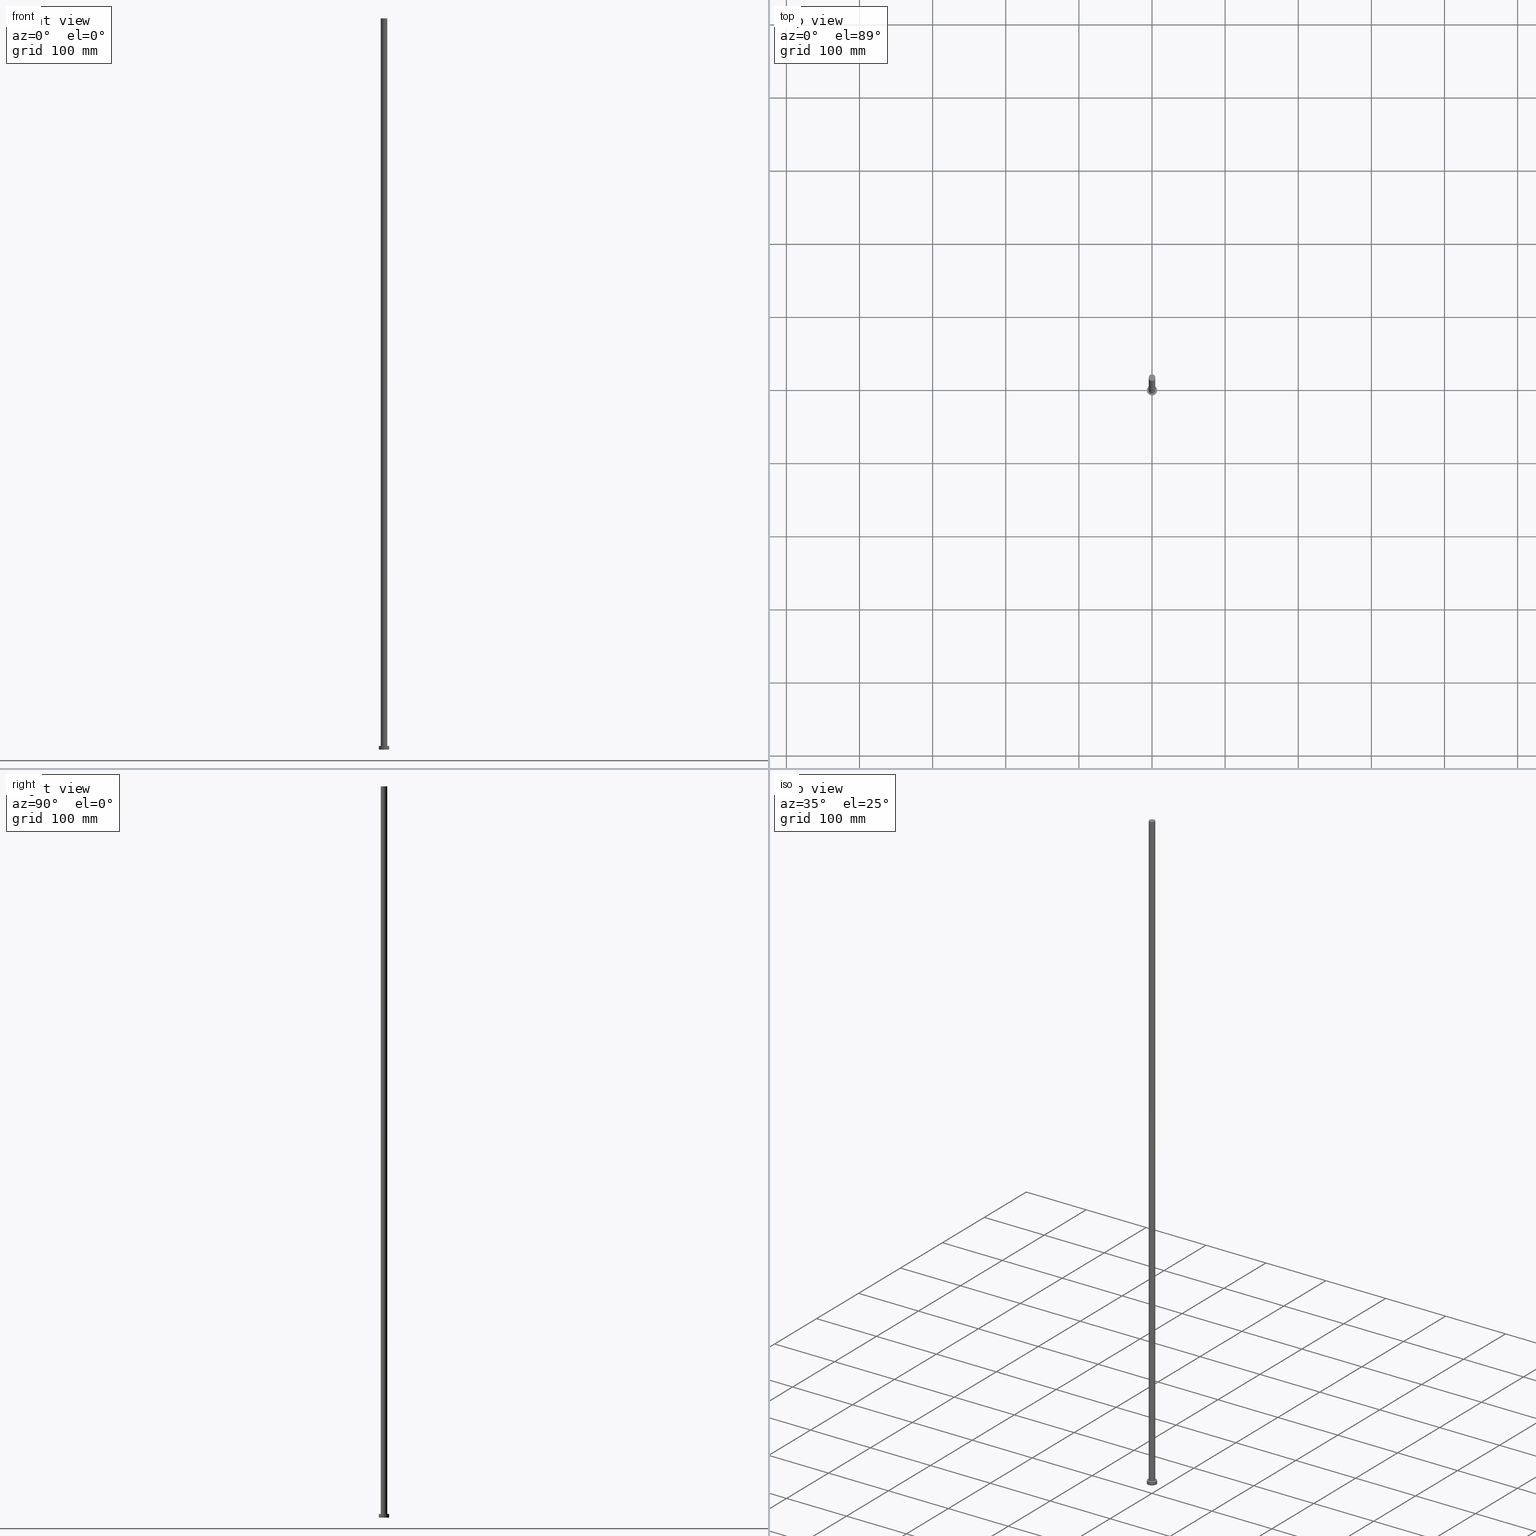
[diagram: canonical four-view strip — front | top / right | iso, engineering-drawing reading convention]
A machine part, canonical four-view strip (front | top / right | iso — engineering-drawing reading convention). The complete STEP part file that produces these views, byte-faithful:
ISO-10303-21;
HEADER;
FILE_DESCRIPTION (( 'STEP AP203' ),
    '1' );
FILE_NAME ('b1a9.STEP',
    '2023-02-12T11:28:35',
    ( '' ),
    ( '' ),
    'SwSTEP 2.0',
    'SolidWorks 2019',
    '' );
FILE_SCHEMA (( 'CONFIG_CONTROL_DESIGN' ));
ENDSEC;

DATA;
#1 = CARTESIAN_POINT ( 'NONE',  ( 4.500000000000000888, 5.510910596163088569E-16, 5.000000000000000000 ) ) ;
#2 = APPROVAL_DATE_TIME ( #186, #63 ) ;
#3 = CARTESIAN_POINT ( 'NONE',  ( -7.000000000000000000, 0.000000000000000000, 5.000000000000000000 ) ) ;
#4 = CC_DESIGN_APPROVAL ( #63, ( #235 ) ) ;
#5 = LINE ( 'NONE', #91, #96 ) ;
#6 = PERSON_AND_ORGANIZATION_ROLE ( 'creator' ) ;
#7 = CC_DESIGN_PERSON_AND_ORGANIZATION_ASSIGNMENT ( #92, #149, ( #235 ) ) ;
#8 = DIRECTION ( 'NONE',  ( 1.000000000000000000, 0.000000000000000000, 0.000000000000000000 ) ) ;
#9 = DATE_AND_TIME ( #171, #195 ) ;
#10 = CARTESIAN_POINT ( 'NONE',  ( 0.000000000000000000, 0.000000000000000000, 5.000000000000000000 ) ) ;
#11 = PLANE ( 'NONE',  #59 ) ;
#12 = EDGE_LOOP ( 'NONE', ( #43, #82, #164, #183 ) ) ;
#13 = ORIENTED_EDGE ( 'NONE', *, *, #165, .F. ) ;
#14 = ADVANCED_FACE ( 'NONE', ( #144, #210 ), #30, .T. ) ;
#15 = ADVANCED_FACE ( 'NONE', ( #80 ), #11, .F. ) ;
#16 = DIRECTION ( 'NONE',  ( 0.000000000000000000, 0.000000000000000000, 1.000000000000000000 ) ) ;
#17 = ADVANCED_FACE ( 'NONE', ( #254 ), #250, .T. ) ;
#18 = PERSON_AND_ORGANIZATION ( #178, #142 ) ;
#19 = DIRECTION ( 'NONE',  ( -0.000000000000000000, -0.000000000000000000, -1.000000000000000000 ) ) ;
#20 = CARTESIAN_POINT ( 'NONE',  ( 4.500000000000000888, 5.510910596163088569E-16, 1000.000000000000000 ) ) ;
#21 = CC_DESIGN_APPROVAL ( #162, ( #194 ) ) ;
#22 = PERSON_AND_ORGANIZATION ( #178, #142 ) ;
#23 = EDGE_LOOP ( 'NONE', ( #123, #127 ) ) ;
#24 = VERTEX_POINT ( 'NONE', #78 ) ;
#25 = EDGE_CURVE ( 'NONE', #67, #156, #137, .T. ) ;
#26 = EDGE_LOOP ( 'NONE', ( #163, #28 ) ) ;
#27 = CARTESIAN_POINT ( 'NONE',  ( 0.000000000000000000, 0.000000000000000000, 5.000000000000000000 ) ) ;
#28 = ORIENTED_EDGE ( 'NONE', *, *, #115, .T. ) ;
#29 = DESIGN_CONTEXT ( 'detailed design', #167, 'design' ) ;
#30 = PLANE ( 'NONE',  #200 ) ;
#31 = DIRECTION ( 'NONE',  ( 1.000000000000000000, 0.000000000000000000, 0.000000000000000000 ) ) ;
#32 = AXIS2_PLACEMENT_3D ( 'NONE', #221, #38, #155 ) ;
#33 = COORDINATED_UNIVERSAL_TIME_OFFSET ( 1, 0, .AHEAD. ) ;
#34 = CYLINDRICAL_SURFACE ( 'NONE', #79, 4.500000000000000888 ) ;
#35 = CARTESIAN_POINT ( 'NONE',  ( 0.000000000000000000, 0.000000000000000000, 1000.000000000000000 ) ) ;
#36 = LOCAL_TIME ( 12, 28, 35.00000000000000000, #33 ) ;
#37 = DATE_TIME_ROLE ( 'creation_date' ) ;
#38 = DIRECTION ( 'NONE',  ( 0.000000000000000000, 0.000000000000000000, 1.000000000000000000 ) ) ;
#39 = FACE_OUTER_BOUND ( 'NONE', #108, .T. ) ;
#40 = CYLINDRICAL_SURFACE ( 'NONE', #54, 7.000000000000000000 ) ;
#41 = AXIS2_PLACEMENT_3D ( 'NONE', #132, #16, #147 ) ;
#42 = CC_DESIGN_PERSON_AND_ORGANIZATION_ASSIGNMENT ( #236, #187, ( #49 ) ) ;
#43 = ORIENTED_EDGE ( 'NONE', *, *, #219, .F. ) ;
#44 = ORIENTED_EDGE ( 'NONE', *, *, #243, .F. ) ;
#45 = ORIENTED_EDGE ( 'NONE', *, *, #211, .F. ) ;
#46 = DIRECTION ( 'NONE',  ( -1.000000000000000000, 0.000000000000000000, 0.000000000000000000 ) ) ;
#47 = PERSON_AND_ORGANIZATION ( #178, #142 ) ;
#48 = CC_DESIGN_DATE_AND_TIME_ASSIGNMENT ( #68, #69, ( #235 ) ) ;
#49 = PRODUCT_DEFINITION_FORMATION_WITH_SPECIFIED_SOURCE ( 'LIBOVOLN�', '', #174, .NOT_KNOWN. ) ;
#50 = DIRECTION ( 'NONE',  ( 1.000000000000000000, 0.000000000000000000, 0.000000000000000000 ) ) ;
#51 = APPROVAL_STATUS ( 'not_yet_approved' ) ;
#52 = APPROVAL_DATE_TIME ( #102, #162 ) ;
#53 =( NAMED_UNIT ( * ) PLANE_ANGLE_UNIT ( ) SI_UNIT ( $, .RADIAN. ) );
#54 = AXIS2_PLACEMENT_3D ( 'NONE', #118, #218, #99 ) ;
#55 = AXIS2_PLACEMENT_3D ( 'NONE', #72, #255, #94 ) ;
#56 = CALENDAR_DATE ( 2023, 12, 2 ) ;
#57 = CARTESIAN_POINT ( 'NONE',  ( 7.000000000000000000, 8.572527594031473190E-16, 5.000000000000000000 ) ) ;
#58 = CLOSED_SHELL ( 'NONE', ( #252, #215, #17, #14, #15, #157, #134 ) ) ;
#59 = AXIS2_PLACEMENT_3D ( 'NONE', #86, #121, #159 ) ;
#60 = ORIENTED_EDGE ( 'NONE', *, *, #115, .F. ) ;
#61 = VERTEX_POINT ( 'NONE', #247 ) ;
#62 = CARTESIAN_POINT ( 'NONE',  ( 0.000000000000000000, 0.000000000000000000, 5.000000000000000000 ) ) ;
#63 = APPROVAL ( #88, 'NEUR�EN�' ) ;
#64 = ORIENTED_EDGE ( 'NONE', *, *, #243, .T. ) ;
#65 = APPROVAL_PERSON_ORGANIZATION ( #196, #188, #240 ) ;
#66 = DIRECTION ( 'NONE',  ( 1.000000000000000000, 0.000000000000000000, 0.000000000000000000 ) ) ;
#67 = VERTEX_POINT ( 'NONE', #205 ) ;
#68 = DATE_AND_TIME ( #212, #81 ) ;
#69 = DATE_TIME_ROLE ( 'classification_date' ) ;
#70 = CARTESIAN_POINT ( 'NONE',  ( 0.000000000000000000, 0.000000000000000000, 5.000000000000000000 ) ) ;
#71 = APPLICATION_PROTOCOL_DEFINITION ( 'international standard', 'config_control_design', 1994, #167 ) ;
#72 = CARTESIAN_POINT ( 'NONE',  ( 0.000000000000000000, 0.000000000000000000, 1000.000000000000000 ) ) ;
#73 = VECTOR ( 'NONE', #19, 1000.000000000000000 ) ;
#74 = APPLICATION_CONTEXT ( 'configuration controlled 3d designs of mechanical parts and assemblies' ) ;
#75 = DIRECTION ( 'NONE',  ( -0.000000000000000000, -0.000000000000000000, -1.000000000000000000 ) ) ;
#76 = CARTESIAN_POINT ( 'NONE',  ( -7.000000000000000000, 0.000000000000000000, 0.000000000000000000 ) ) ;
#77 = PRODUCT_RELATED_PRODUCT_CATEGORY ( 'detail', '', ( #174 ) ) ;
#78 = CARTESIAN_POINT ( 'NONE',  ( -7.000000000000000000, 0.000000000000000000, 5.000000000000000000 ) ) ;
#79 = AXIS2_PLACEMENT_3D ( 'NONE', #35, #95, #46 ) ;
#80 = FACE_OUTER_BOUND ( 'NONE', #224, .T. ) ;
#81 = LOCAL_TIME ( 12, 28, 35.00000000000000000, #190 ) ;
#82 = ORIENTED_EDGE ( 'NONE', *, *, #113, .F. ) ;
#83 = EDGE_LOOP ( 'NONE', ( #230, #105 ) ) ;
#84 = AXIS2_PLACEMENT_3D ( 'NONE', #27, #180, #50 ) ;
#85 = CALENDAR_DATE ( 2023, 12, 2 ) ;
#86 = CARTESIAN_POINT ( 'NONE',  ( 0.000000000000000000, 0.000000000000000000, 0.000000000000000000 ) ) ;
#87 = CC_DESIGN_PERSON_AND_ORGANIZATION_ASSIGNMENT ( #197, #133, ( #49 ) ) ;
#88 = APPROVAL_STATUS ( 'not_yet_approved' ) ;
#89 = CARTESIAN_POINT ( 'NONE',  ( 4.500000000000000888, 5.510910596163088569E-16, 1000.000000000000000 ) ) ;
#90 = SHAPE_DEFINITION_REPRESENTATION ( #220, #182 ) ;
#91 = CARTESIAN_POINT ( 'NONE',  ( 7.000000000000000000, 8.572527594031473190E-16, 5.000000000000000000 ) ) ;
#92 = PERSON_AND_ORGANIZATION ( #178, #142 ) ;
#93 = LOCAL_TIME ( 12, 28, 35.00000000000000000, #193 ) ;
#94 = DIRECTION ( 'NONE',  ( 1.000000000000000000, 0.000000000000000000, 0.000000000000000000 ) ) ;
#95 = DIRECTION ( 'NONE',  ( -0.000000000000000000, -0.000000000000000000, -1.000000000000000000 ) ) ;
#96 = VECTOR ( 'NONE', #166, 1000.000000000000000 ) ;
#97 = DIRECTION ( 'NONE',  ( -0.000000000000000000, -0.000000000000000000, -1.000000000000000000 ) ) ;
#98 = EDGE_CURVE ( 'NONE', #249, #24, #103, .T. ) ;
#99 = DIRECTION ( 'NONE',  ( -1.000000000000000000, 0.000000000000000000, 0.000000000000000000 ) ) ;
#100 = APPROVAL_DATE_TIME ( #9, #188 ) ;
#101 = CARTESIAN_POINT ( 'NONE',  ( 0.000000000000000000, 0.000000000000000000, 0.000000000000000000 ) ) ;
#102 = DATE_AND_TIME ( #85, #36 ) ;
#103 = CIRCLE ( 'NONE', #84, 7.000000000000000000 ) ;
#104 = CC_DESIGN_APPROVAL ( #188, ( #49 ) ) ;
#105 = ORIENTED_EDGE ( 'NONE', *, *, #202, .F. ) ;
#106 = DIRECTION ( 'NONE',  ( 0.000000000000000000, 0.000000000000000000, 1.000000000000000000 ) ) ;
#107 = AXIS2_PLACEMENT_3D ( 'NONE', #10, #158, #179 ) ;
#108 = EDGE_LOOP ( 'NONE', ( #60, #124, #161, #184 ) ) ;
#109 = DIRECTION ( 'NONE',  ( 1.000000000000000000, 0.000000000000000000, -0.000000000000000000 ) ) ;
#110 = CARTESIAN_POINT ( 'NONE',  ( 0.000000000000000000, 0.000000000000000000, 5.000000000000000000 ) ) ;
#111 = AXIS2_PLACEMENT_3D ( 'NONE', #62, #141, #207 ) ;
#112 = DIRECTION ( 'NONE',  ( 0.000000000000000000, 0.000000000000000000, 1.000000000000000000 ) ) ;
#113 = EDGE_CURVE ( 'NONE', #61, #120, #168, .T. ) ;
#114 = DIRECTION ( 'NONE',  ( 0.000000000000000000, 0.000000000000000000, 1.000000000000000000 ) ) ;
#115 = EDGE_CURVE ( 'NONE', #120, #61, #150, .T. ) ;
#116 = LOCAL_TIME ( 12, 28, 35.00000000000000000, #232 ) ;
#117 = APPROVAL_STATUS ( 'not_yet_approved' ) ;
#118 = CARTESIAN_POINT ( 'NONE',  ( 0.000000000000000000, 0.000000000000000000, 5.000000000000000000 ) ) ;
#119 = CYLINDRICAL_SURFACE ( 'NONE', #175, 4.500000000000000888 ) ;
#120 = VERTEX_POINT ( 'NONE', #89 ) ;
#121 = DIRECTION ( 'NONE',  ( 0.000000000000000000, 0.000000000000000000, 1.000000000000000000 ) ) ;
#122 = CC_DESIGN_DATE_AND_TIME_ASSIGNMENT ( #172, #37, ( #194 ) ) ;
#123 = ORIENTED_EDGE ( 'NONE', *, *, #165, .T. ) ;
#124 = ORIENTED_EDGE ( 'NONE', *, *, #219, .T. ) ;
#125 = CIRCLE ( 'NONE', #225, 7.000000000000000000 ) ;
#126 = CC_DESIGN_PERSON_AND_ORGANIZATION_ASSIGNMENT ( #22, #6, ( #194 ) ) ;
#127 = ORIENTED_EDGE ( 'NONE', *, *, #98, .T. ) ;
#128 = SECURITY_CLASSIFICATION_LEVEL ( 'unclassified' ) ;
#129 = DIRECTION ( 'NONE',  ( -0.000000000000000000, -0.000000000000000000, -1.000000000000000000 ) ) ;
#130 = CALENDAR_DATE ( 2023, 12, 2 ) ;
#131 = DIRECTION ( 'NONE',  ( 1.000000000000000000, 0.000000000000000000, 0.000000000000000000 ) ) ;
#132 = CARTESIAN_POINT ( 'NONE',  ( 0.000000000000000000, 0.000000000000000000, 1000.000000000000000 ) ) ;
#133 = PERSON_AND_ORGANIZATION_ROLE ( 'creator' ) ;
#134 = ADVANCED_FACE ( 'NONE', ( #189 ), #146, .T. ) ;
#135 = DIRECTION ( 'NONE',  ( 0.000000000000000000, 0.000000000000000000, 1.000000000000000000 ) ) ;
#136 = DIRECTION ( 'NONE',  ( 1.000000000000000000, 0.000000000000000000, 0.000000000000000000 ) ) ;
#137 = CIRCLE ( 'NONE', #111, 4.500000000000000888 ) ;
#138 = COORDINATED_UNIVERSAL_TIME_OFFSET ( 1, 0, .AHEAD. ) ;
#139 = EDGE_CURVE ( 'NONE', #24, #226, #192, .T. ) ;
#140 = ORIENTED_EDGE ( 'NONE', *, *, #139, .F. ) ;
#141 = DIRECTION ( 'NONE',  ( 0.000000000000000000, 0.000000000000000000, 1.000000000000000000 ) ) ;
#142 = ORGANIZATION ( 'NEUR�EN�', 'NEUR�EN�', '' ) ;
#143 = MECHANICAL_CONTEXT ( 'NONE', #74, 'mechanical' ) ;
#144 = FACE_BOUND ( 'NONE', #83, .T. ) ;
#145 = PERSON_AND_ORGANIZATION_ROLE ( 'design_owner' ) ;
#146 = PLANE ( 'NONE',  #41 ) ;
#147 = DIRECTION ( 'NONE',  ( 1.000000000000000000, 0.000000000000000000, -0.000000000000000000 ) ) ;
#148 = APPROVAL_ROLE ( '' ) ;
#149 = PERSON_AND_ORGANIZATION_ROLE ( 'classification_officer' ) ;
#150 = CIRCLE ( 'NONE', #55, 4.500000000000000888 ) ;
#151 = CARTESIAN_POINT ( 'NONE',  ( -4.500000000000000888, 0.000000000000000000, 1000.000000000000000 ) ) ;
#152 = CARTESIAN_POINT ( 'NONE',  ( 0.000000000000000000, 0.000000000000000000, 5.000000000000000000 ) ) ;
#153 = EDGE_CURVE ( 'NONE', #249, #231, #5, .T. ) ;
#154 = ORIENTED_EDGE ( 'NONE', *, *, #153, .T. ) ;
#155 = DIRECTION ( 'NONE',  ( 1.000000000000000000, 0.000000000000000000, 0.000000000000000000 ) ) ;
#156 = VERTEX_POINT ( 'NONE', #1 ) ;
#157 = ADVANCED_FACE ( 'NONE', ( #216 ), #34, .T. ) ;
#158 = DIRECTION ( 'NONE',  ( -0.000000000000000000, -0.000000000000000000, -1.000000000000000000 ) ) ;
#159 = DIRECTION ( 'NONE',  ( 1.000000000000000000, 0.000000000000000000, -0.000000000000000000 ) ) ;
#160 = APPROVAL_PERSON_ORGANIZATION ( #47, #162, #148 ) ;
#161 = ORIENTED_EDGE ( 'NONE', *, *, #202, .T. ) ;
#162 = APPROVAL ( #51, 'NEUR�EN�' ) ;
#163 = ORIENTED_EDGE ( 'NONE', *, *, #113, .T. ) ;
#164 = ORIENTED_EDGE ( 'NONE', *, *, #170, .T. ) ;
#165 = EDGE_CURVE ( 'NONE', #24, #249, #173, .T. ) ;
#166 = DIRECTION ( 'NONE',  ( -0.000000000000000000, -0.000000000000000000, -1.000000000000000000 ) ) ;
#167 = APPLICATION_CONTEXT ( 'configuration controlled 3d designs of mechanical parts and assemblies' ) ;
#168 = CIRCLE ( 'NONE', #238, 4.500000000000000888 ) ;
#169 = CARTESIAN_POINT ( 'NONE',  ( 0.000000000000000000, 0.000000000000000000, 1000.000000000000000 ) ) ;
#170 = EDGE_CURVE ( 'NONE', #61, #67, #214, .T. ) ;
#171 = CALENDAR_DATE ( 2023, 12, 2 ) ;
#172 = DATE_AND_TIME ( #56, #93 ) ;
#173 = CIRCLE ( 'NONE', #206, 7.000000000000000000 ) ;
#174 = PRODUCT ( 'b1a9', 'b1a9', '', ( #143 ) ) ;
#175 = AXIS2_PLACEMENT_3D ( 'NONE', #176, #97, #245 ) ;
#176 = CARTESIAN_POINT ( 'NONE',  ( 0.000000000000000000, 0.000000000000000000, 1000.000000000000000 ) ) ;
#177 = CIRCLE ( 'NONE', #213, 4.500000000000000888 ) ;
#178 = PERSON ( 'NEUR�EN�', 'NEUR�EN�', 'NEUR�EN�', ('NEUR�EN�'), ('NEUR�EN�'), ('NEUR�EN�') ) ;
#179 = DIRECTION ( 'NONE',  ( -1.000000000000000000, 0.000000000000000000, 0.000000000000000000 ) ) ;
#180 = DIRECTION ( 'NONE',  ( 0.000000000000000000, 0.000000000000000000, 1.000000000000000000 ) ) ;
#181 = CIRCLE ( 'NONE', #32, 7.000000000000000000 ) ;
#182 = ADVANCED_BREP_SHAPE_REPRESENTATION ( 'b1a9', ( #246, #248 ), #222 ) ;
#183 = ORIENTED_EDGE ( 'NONE', *, *, #25, .T. ) ;
#184 = ORIENTED_EDGE ( 'NONE', *, *, #170, .F. ) ;
#185 = VECTOR ( 'NONE', #129, 1000.000000000000000 ) ;
#186 = DATE_AND_TIME ( #130, #116 ) ;
#187 = PERSON_AND_ORGANIZATION_ROLE ( 'design_supplier' ) ;
#188 = APPROVAL ( #117, 'NEUR�EN�' ) ;
#189 = FACE_OUTER_BOUND ( 'NONE', #26, .T. ) ;
#190 = COORDINATED_UNIVERSAL_TIME_OFFSET ( 1, 0, .AHEAD. ) ;
#191 = PERSON_AND_ORGANIZATION ( #178, #142 ) ;
#192 = LINE ( 'NONE', #3, #185 ) ;
#193 = COORDINATED_UNIVERSAL_TIME_OFFSET ( 1, 0, .AHEAD. ) ;
#194 = PRODUCT_DEFINITION ( 'NEZN�M�', '', #49, #29 ) ;
#195 = LOCAL_TIME ( 12, 28, 35.00000000000000000, #138 ) ;
#196 = PERSON_AND_ORGANIZATION ( #178, #142 ) ;
#197 = PERSON_AND_ORGANIZATION ( #178, #142 ) ;
#198 = LINE ( 'NONE', #20, #73 ) ;
#199 = ORIENTED_EDGE ( 'NONE', *, *, #153, .F. ) ;
#200 = AXIS2_PLACEMENT_3D ( 'NONE', #110, #106, #109 ) ;
#201 =( NAMED_UNIT ( * ) SI_UNIT ( $, .STERADIAN. ) SOLID_ANGLE_UNIT ( ) );
#202 = EDGE_CURVE ( 'NONE', #156, #67, #177, .T. ) ;
#203 = EDGE_LOOP ( 'NONE', ( #227, #154, #209, #140 ) ) ;
#204 = UNCERTAINTY_MEASURE_WITH_UNIT (LENGTH_MEASURE( 1.000000000000000082E-05 ), #223, 'distance_accuracy_value', 'NONE');
#205 = CARTESIAN_POINT ( 'NONE',  ( -4.500000000000000888, 0.000000000000000000, 5.000000000000000000 ) ) ;
#206 = AXIS2_PLACEMENT_3D ( 'NONE', #70, #234, #131 ) ;
#207 = DIRECTION ( 'NONE',  ( 1.000000000000000000, 0.000000000000000000, 0.000000000000000000 ) ) ;
#208 = APPLICATION_PROTOCOL_DEFINITION ( 'international standard', 'config_control_design', 1994, #74 ) ;
#209 = ORIENTED_EDGE ( 'NONE', *, *, #211, .T. ) ;
#210 = FACE_OUTER_BOUND ( 'NONE', #23, .T. ) ;
#211 = EDGE_CURVE ( 'NONE', #231, #226, #125, .T. ) ;
#212 = CALENDAR_DATE ( 2023, 12, 2 ) ;
#213 = AXIS2_PLACEMENT_3D ( 'NONE', #152, #135, #136 ) ;
#214 = LINE ( 'NONE', #151, #229 ) ;
#215 = ADVANCED_FACE ( 'NONE', ( #239 ), #40, .T. ) ;
#216 = FACE_OUTER_BOUND ( 'NONE', #12, .T. ) ;
#217 = DIRECTION ( 'NONE',  ( 0.000000000000000000, 0.000000000000000000, 1.000000000000000000 ) ) ;
#218 = DIRECTION ( 'NONE',  ( -0.000000000000000000, -0.000000000000000000, -1.000000000000000000 ) ) ;
#219 = EDGE_CURVE ( 'NONE', #120, #156, #198, .T. ) ;
#220 = PRODUCT_DEFINITION_SHAPE ( 'NONE', 'NONE',  #194 ) ;
#221 = CARTESIAN_POINT ( 'NONE',  ( 0.000000000000000000, 0.000000000000000000, 0.000000000000000000 ) ) ;
#222 =( GEOMETRIC_REPRESENTATION_CONTEXT ( 3 ) GLOBAL_UNCERTAINTY_ASSIGNED_CONTEXT ( ( #204 ) ) GLOBAL_UNIT_ASSIGNED_CONTEXT ( ( #223, #53, #201 ) ) REPRESENTATION_CONTEXT ( 'NONE', 'WORKASPACE' ) );
#223 =( LENGTH_UNIT ( ) NAMED_UNIT ( * ) SI_UNIT ( .MILLI., .METRE. ) );
#224 = EDGE_LOOP ( 'NONE', ( #44, #45 ) ) ;
#225 = AXIS2_PLACEMENT_3D ( 'NONE', #101, #114, #8 ) ;
#226 = VERTEX_POINT ( 'NONE', #76 ) ;
#227 = ORIENTED_EDGE ( 'NONE', *, *, #98, .F. ) ;
#228 = CC_DESIGN_PERSON_AND_ORGANIZATION_ASSIGNMENT ( #191, #145, ( #174 ) ) ;
#229 = VECTOR ( 'NONE', #75, 1000.000000000000000 ) ;
#230 = ORIENTED_EDGE ( 'NONE', *, *, #25, .F. ) ;
#231 = VERTEX_POINT ( 'NONE', #241 ) ;
#232 = COORDINATED_UNIVERSAL_TIME_OFFSET ( 1, 0, .AHEAD. ) ;
#233 = APPROVAL_ROLE ( '' ) ;
#234 = DIRECTION ( 'NONE',  ( 0.000000000000000000, 0.000000000000000000, 1.000000000000000000 ) ) ;
#235 = SECURITY_CLASSIFICATION ( '', '', #128 ) ;
#236 = PERSON_AND_ORGANIZATION ( #178, #142 ) ;
#237 = CARTESIAN_POINT ( 'NONE',  ( 0.000000000000000000, 0.000000000000000000, 0.000000000000000000 ) ) ;
#238 = AXIS2_PLACEMENT_3D ( 'NONE', #169, #217, #31 ) ;
#239 = FACE_OUTER_BOUND ( 'NONE', #203, .T. ) ;
#240 = APPROVAL_ROLE ( '' ) ;
#241 = CARTESIAN_POINT ( 'NONE',  ( 7.000000000000000000, 8.572527594031473190E-16, 0.000000000000000000 ) ) ;
#242 = ORIENTED_EDGE ( 'NONE', *, *, #139, .T. ) ;
#243 = EDGE_CURVE ( 'NONE', #226, #231, #181, .T. ) ;
#244 = CC_DESIGN_SECURITY_CLASSIFICATION ( #235, ( #49 ) ) ;
#245 = DIRECTION ( 'NONE',  ( -1.000000000000000000, 0.000000000000000000, 0.000000000000000000 ) ) ;
#246 = MANIFOLD_SOLID_BREP ( 'P�idat vysunut�m3', #58 ) ;
#247 = CARTESIAN_POINT ( 'NONE',  ( -4.500000000000000888, 0.000000000000000000, 1000.000000000000000 ) ) ;
#248 = AXIS2_PLACEMENT_3D ( 'NONE', #237, #112, #66 ) ;
#249 = VERTEX_POINT ( 'NONE', #57 ) ;
#250 = CYLINDRICAL_SURFACE ( 'NONE', #107, 7.000000000000000000 ) ;
#251 = EDGE_LOOP ( 'NONE', ( #199, #13, #242, #64 ) ) ;
#252 = ADVANCED_FACE ( 'NONE', ( #39 ), #119, .T. ) ;
#253 = APPROVAL_PERSON_ORGANIZATION ( #18, #63, #233 ) ;
#254 = FACE_OUTER_BOUND ( 'NONE', #251, .T. ) ;
#255 = DIRECTION ( 'NONE',  ( 0.000000000000000000, 0.000000000000000000, 1.000000000000000000 ) ) ;
ENDSEC;
END-ISO-10303-21;
